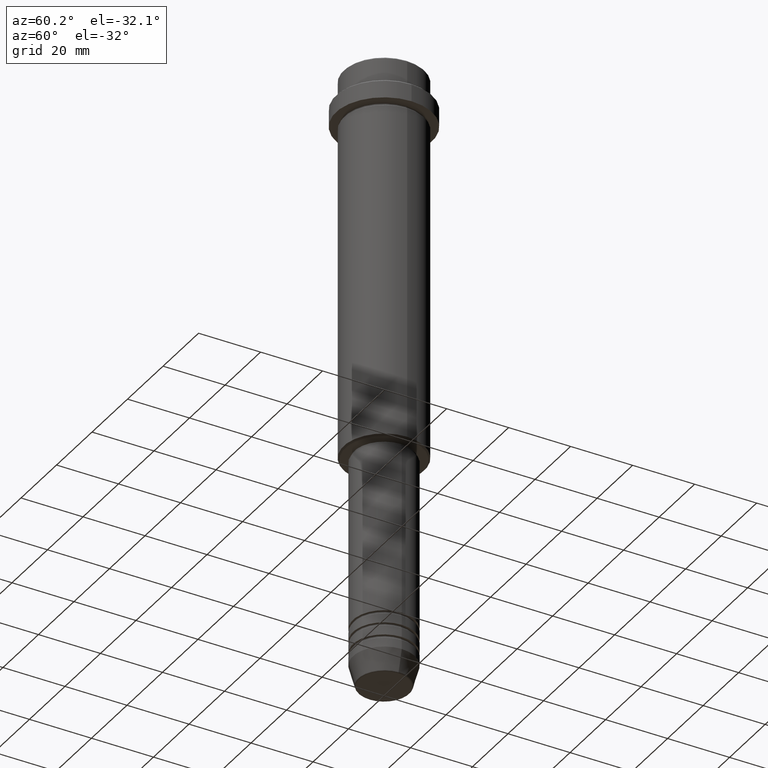
[diagram: clean part render]
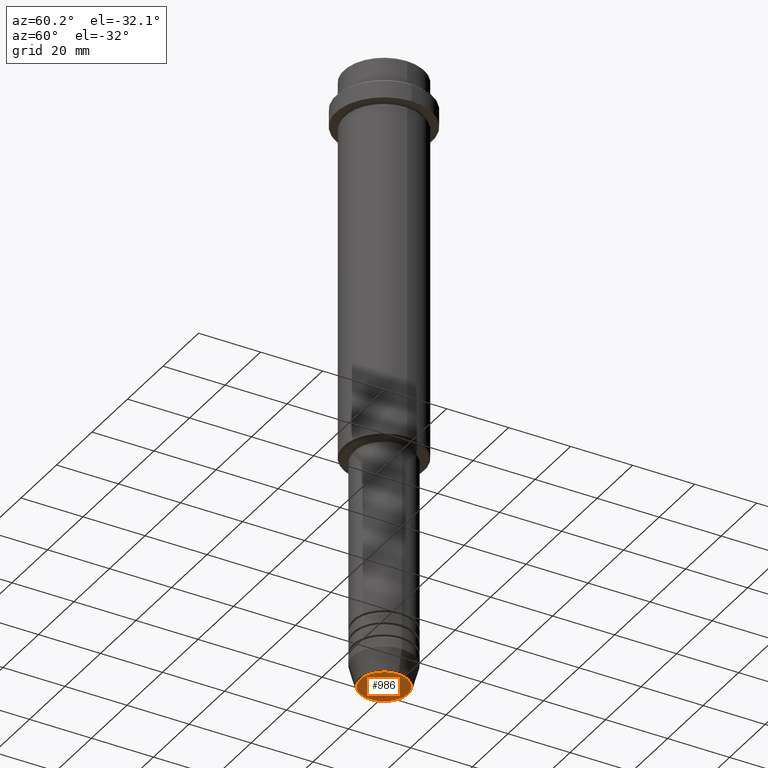
[diagram: same view with one face highlighted and labeled with its STEP entity id]
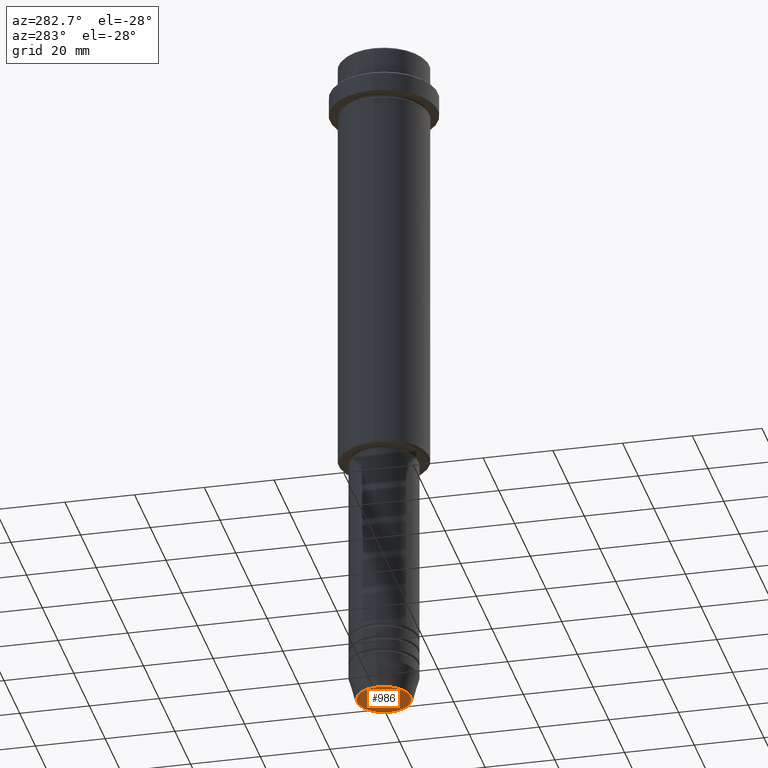
[diagram: same view with one face highlighted and labeled with its STEP entity id]
A machine part, auxiliary view. The second image highlights one B-rep face of the part: STEP entity #986.
A second angle (auxiliary view) of the same face is appended — the face is thin or edge-on in the first view.
In plain terms, the highlighted planar face has unit normal (0, -0, 1).
Its self-contained STEP definition (entity closure, byte-faithful):
#43 = AXIS2_PLACEMENT_3D ( 'NONE', #597, #921, #1051 ) ;
#62 = AXIS2_PLACEMENT_3D ( 'NONE', #845, #1261, #840 ) ;
#89 = CARTESIAN_POINT ( 'NONE',  ( -7.740692158992658278, 9.775343368540041107E-16, -200.0000000000000000 ) ) ;
#211 = ORIENTED_EDGE ( 'NONE', *, *, #937, .T. ) ;
#306 = DIRECTION ( 'NONE',  ( 0.000000000000000000, -0.000000000000000000, 1.000000000000000000 ) ) ;
#418 = PLANE ( 'NONE',  #1164 ) ;
#432 = CIRCLE ( 'NONE', #62, 7.740692158992658278 ) ;
#471 = CARTESIAN_POINT ( 'NONE',  ( 7.740692158992658278, 0.000000000000000000, -200.0000000000000000 ) ) ;
#551 = VERTEX_POINT ( 'NONE', #89 ) ;
#597 = CARTESIAN_POINT ( 'NONE',  ( 0.000000000000000000, 0.000000000000000000, -200.0000000000000000 ) ) ;
#742 = DIRECTION ( 'NONE',  ( 1.000000000000000000, 0.000000000000000000, 0.000000000000000000 ) ) ;
#749 = ORIENTED_EDGE ( 'NONE', *, *, #829, .T. ) ;
#796 = CIRCLE ( 'NONE', #43, 7.740692158992658278 ) ;
#824 = VERTEX_POINT ( 'NONE', #471 ) ;
#829 = EDGE_CURVE ( 'NONE', #551, #824, #796, .T. ) ;
#840 = DIRECTION ( 'NONE',  ( 1.000000000000000000, 0.000000000000000000, 0.000000000000000000 ) ) ;
#845 = CARTESIAN_POINT ( 'NONE',  ( 0.000000000000000000, 0.000000000000000000, -200.0000000000000000 ) ) ;
#921 = DIRECTION ( 'NONE',  ( 0.000000000000000000, 0.000000000000000000, -1.000000000000000000 ) ) ;
#937 = EDGE_CURVE ( 'NONE', #824, #551, #432, .T. ) ;
#986 = ADVANCED_FACE ( 'NONE', ( #1395 ), #418, .F. ) ;
#1051 = DIRECTION ( 'NONE',  ( 1.000000000000000000, 0.000000000000000000, 0.000000000000000000 ) ) ;
#1164 = AXIS2_PLACEMENT_3D ( 'NONE', #1287, #306, #742 ) ;
#1223 = EDGE_LOOP ( 'NONE', ( #211, #749 ) ) ;
#1261 = DIRECTION ( 'NONE',  ( 0.000000000000000000, 0.000000000000000000, -1.000000000000000000 ) ) ;
#1287 = CARTESIAN_POINT ( 'NONE',  ( 0.000000000000000000, 0.000000000000000000, -200.0000000000000000 ) ) ;
#1395 = FACE_OUTER_BOUND ( 'NONE', #1223, .T. ) ;